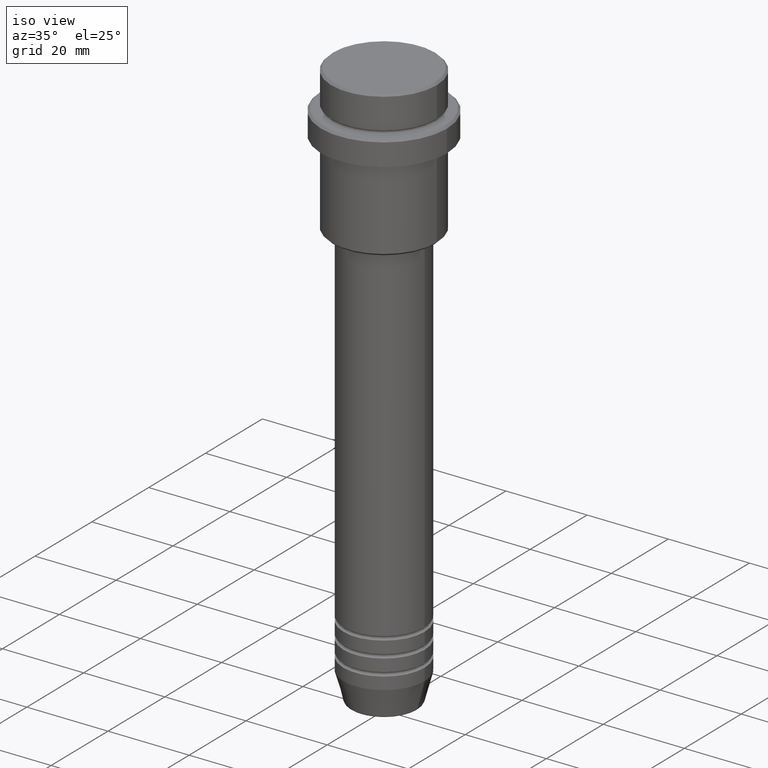
[diagram: clean part render]
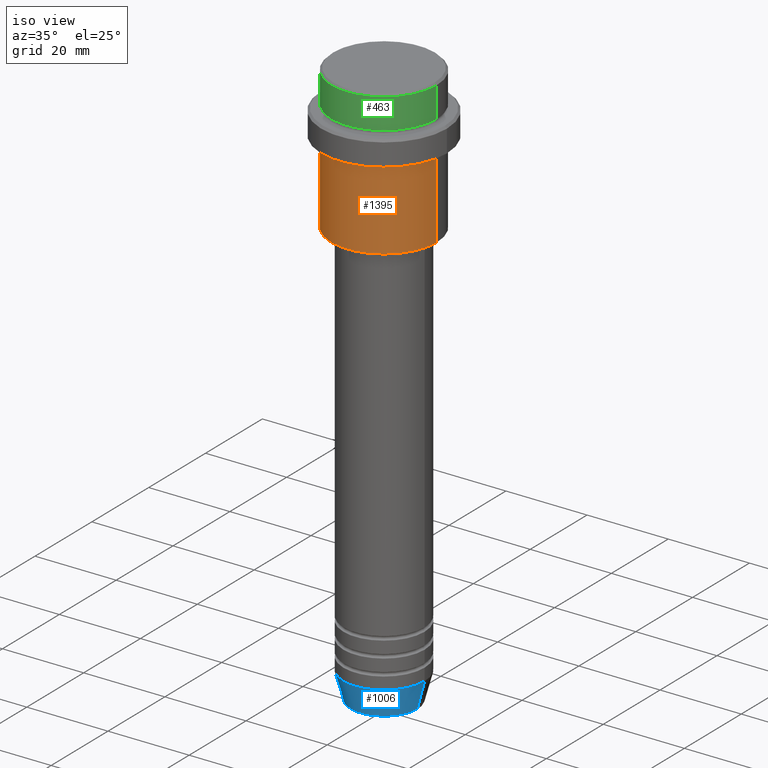
[diagram: same view with three faces highlighted in distinct colors, each labeled with its STEP entity id]
A machine part, iso view with three faces highlighted in distinct colors.
Their STEP definitions:

[orange] entity #1395 — the highlighted cylindrical surface (partial cylindrical patch) has radius 13 mm, axis along (-0, -0, 1).
#2 = DIRECTION ( 'NONE',  ( 1.000000000000000000, 0.000000000000000000, 0.000000000000000000 ) ) ;
#8 = CYLINDRICAL_SURFACE ( 'NONE', #757, 13.00000000000000000 ) ;
#13 = CARTESIAN_POINT ( 'NONE',  ( -13.00000000000000000, 1.592040838891559095E-15, -16.00000000000000000 ) ) ;
#79 = CARTESIAN_POINT ( 'NONE',  ( 13.00000000000000000, 0.000000000000000000, 0.000000000000000000 ) ) ;
#102 = DIRECTION ( 'NONE',  ( -0.000000000000000000, -0.000000000000000000, 1.000000000000000000 ) ) ;
#107 = CARTESIAN_POINT ( 'NONE',  ( 0.000000000000000000, 0.000000000000000000, -16.00000000000000000 ) ) ;
#108 = ORIENTED_EDGE ( 'NONE', *, *, #1301, .F. ) ;
#126 = VERTEX_POINT ( 'NONE', #878 ) ;
#215 = EDGE_CURVE ( 'NONE', #329, #126, #641, .T. ) ;
#242 = EDGE_CURVE ( 'NONE', #1245, #615, #980, .T. ) ;
#301 = DIRECTION ( 'NONE',  ( -0.000000000000000000, -0.000000000000000000, 1.000000000000000000 ) ) ;
#316 = AXIS2_PLACEMENT_3D ( 'NONE', #998, #1008, #1225 ) ;
#329 = VERTEX_POINT ( 'NONE', #13 ) ;
#335 = FACE_OUTER_BOUND ( 'NONE', #1028, .T. ) ;
#440 = AXIS2_PLACEMENT_3D ( 'NONE', #107, #985, #2 ) ;
#492 = VECTOR ( 'NONE', #1266, 1000.000000000000000 ) ;
#532 = ORIENTED_EDGE ( 'NONE', *, *, #215, .F. ) ;
#615 = VERTEX_POINT ( 'NONE', #1405 ) ;
#641 = CIRCLE ( 'NONE', #440, 13.00000000000000000 ) ;
#733 = ORIENTED_EDGE ( 'NONE', *, *, #242, .T. ) ;
#757 = AXIS2_PLACEMENT_3D ( 'NONE', #879, #102, #1198 ) ;
#878 = CARTESIAN_POINT ( 'NONE',  ( 13.00000000000000000, 0.000000000000000000, -16.00000000000000000 ) ) ;
#879 = CARTESIAN_POINT ( 'NONE',  ( 0.000000000000000000, 0.000000000000000000, 0.000000000000000000 ) ) ;
#888 = ORIENTED_EDGE ( 'NONE', *, *, #892, .T. ) ;
#892 = EDGE_CURVE ( 'NONE', #615, #126, #1038, .T. ) ;
#932 = LINE ( 'NONE', #1160, #1371 ) ;
#945 = CARTESIAN_POINT ( 'NONE',  ( -13.00000000000000000, 1.592040838891559095E-15, -35.49999999999997868 ) ) ;
#980 = CIRCLE ( 'NONE', #316, 13.00000000000000000 ) ;
#985 = DIRECTION ( 'NONE',  ( -0.000000000000000000, -0.000000000000000000, 1.000000000000000000 ) ) ;
#998 = CARTESIAN_POINT ( 'NONE',  ( 0.000000000000000000, 0.000000000000000000, -35.49999999999997868 ) ) ;
#1008 = DIRECTION ( 'NONE',  ( -0.000000000000000000, -0.000000000000000000, 1.000000000000000000 ) ) ;
#1028 = EDGE_LOOP ( 'NONE', ( #108, #733, #888, #532 ) ) ;
#1038 = LINE ( 'NONE', #79, #492 ) ;
#1160 = CARTESIAN_POINT ( 'NONE',  ( -13.00000000000000000, 1.592040838891559095E-15, 0.000000000000000000 ) ) ;
#1198 = DIRECTION ( 'NONE',  ( 1.000000000000000000, 0.000000000000000000, 0.000000000000000000 ) ) ;
#1225 = DIRECTION ( 'NONE',  ( -1.000000000000000000, 0.000000000000000000, 0.000000000000000000 ) ) ;
#1245 = VERTEX_POINT ( 'NONE', #945 ) ;
#1266 = DIRECTION ( 'NONE',  ( -0.000000000000000000, -0.000000000000000000, 1.000000000000000000 ) ) ;
#1301 = EDGE_CURVE ( 'NONE', #1245, #329, #932, .T. ) ;
#1371 = VECTOR ( 'NONE', #301, 1000.000000000000000 ) ;
#1395 = ADVANCED_FACE ( 'NONE', ( #335 ), #8, .T. ) ;
#1405 = CARTESIAN_POINT ( 'NONE',  ( 13.00000000000000000, 0.000000000000000000, -35.49999999999997868 ) ) ;

[blue] entity #1006 — the highlighted conical surface has half-angle 15 deg.
#22 = EDGE_CURVE ( 'NONE', #500, #198, #796, .T. ) ;
#87 = CIRCLE ( 'NONE', #1364, 8.223655072137189492 ) ;
#105 = FACE_OUTER_BOUND ( 'NONE', #574, .T. ) ;
#135 = VERTEX_POINT ( 'NONE', #305 ) ;
#149 = ORIENTED_EDGE ( 'NONE', *, *, #972, .T. ) ;
#173 = DIRECTION ( 'NONE',  ( -0.000000000000000000, -0.000000000000000000, 1.000000000000000000 ) ) ;
#198 = VERTEX_POINT ( 'NONE', #327 ) ;
#231 = DIRECTION ( 'NONE',  ( -0.000000000000000000, -0.000000000000000000, 1.000000000000000000 ) ) ;
#305 = CARTESIAN_POINT ( 'NONE',  ( 8.223655072137189492, 0.000000000000000000, -140.6294095225512422 ) ) ;
#322 = DIRECTION ( 'NONE',  ( 0.2588190451025214611, 0.000000000000000000, 0.9659258262890679791 ) ) ;
#327 = CARTESIAN_POINT ( 'NONE',  ( 10.00000000000000000, 0.000000000000000000, -133.9999999999999716 ) ) ;
#349 = CONICAL_SURFACE ( 'NONE', #1417, 10.00000000000000000, 0.2617993877991502405 ) ;
#359 = ORIENTED_EDGE ( 'NONE', *, *, #22, .F. ) ;
#401 = EDGE_CURVE ( 'NONE', #436, #500, #634, .T. ) ;
#436 = VERTEX_POINT ( 'NONE', #820 ) ;
#457 = EDGE_CURVE ( 'NONE', #436, #135, #87, .T. ) ;
#466 = AXIS2_PLACEMENT_3D ( 'NONE', #1377, #173, #925 ) ;
#500 = VERTEX_POINT ( 'NONE', #854 ) ;
#521 = CARTESIAN_POINT ( 'NONE',  ( 0.000000000000000000, 0.000000000000000000, -140.6294095225512422 ) ) ;
#534 = DIRECTION ( 'NONE',  ( -0.2588190451025214611, 3.169619151431774186E-17, 0.9659258262890679791 ) ) ;
#574 = EDGE_LOOP ( 'NONE', ( #1300, #880, #149, #359 ) ) ;
#634 = LINE ( 'NONE', #1164, #1210 ) ;
#656 = LINE ( 'NONE', #1067, #828 ) ;
#796 = CIRCLE ( 'NONE', #466, 10.00000000000000000 ) ;
#820 = CARTESIAN_POINT ( 'NONE',  ( -8.223655072137189492, 1.115877042642911856E-15, -140.6294095225512422 ) ) ;
#828 = VECTOR ( 'NONE', #322, 1000.000000000000114 ) ;
#854 = CARTESIAN_POINT ( 'NONE',  ( -10.00000000000000000, 1.224646799147353256E-15, -133.9999999999999716 ) ) ;
#864 = DIRECTION ( 'NONE',  ( 1.000000000000000000, 0.000000000000000000, 0.000000000000000000 ) ) ;
#880 = ORIENTED_EDGE ( 'NONE', *, *, #457, .T. ) ;
#925 = DIRECTION ( 'NONE',  ( 1.000000000000000000, 0.000000000000000000, 0.000000000000000000 ) ) ;
#952 = DIRECTION ( 'NONE',  ( -0.000000000000000000, -0.000000000000000000, 1.000000000000000000 ) ) ;
#972 = EDGE_CURVE ( 'NONE', #135, #198, #656, .T. ) ;
#1006 = ADVANCED_FACE ( 'NONE', ( #105 ), #349, .T. ) ;
#1067 = CARTESIAN_POINT ( 'NONE',  ( 10.00000000000000000, 0.000000000000000000, -133.9999999999999716 ) ) ;
#1164 = CARTESIAN_POINT ( 'NONE',  ( -10.00000000000000000, 1.224646799147353256E-15, -133.9999999999999716 ) ) ;
#1210 = VECTOR ( 'NONE', #534, 1000.000000000000114 ) ;
#1254 = DIRECTION ( 'NONE',  ( 1.000000000000000000, 0.000000000000000000, 0.000000000000000000 ) ) ;
#1300 = ORIENTED_EDGE ( 'NONE', *, *, #401, .F. ) ;
#1320 = CARTESIAN_POINT ( 'NONE',  ( 0.000000000000000000, 0.000000000000000000, -133.9999999999999716 ) ) ;
#1364 = AXIS2_PLACEMENT_3D ( 'NONE', #521, #952, #1254 ) ;
#1377 = CARTESIAN_POINT ( 'NONE',  ( 0.000000000000000000, 0.000000000000000000, -133.9999999999999716 ) ) ;
#1417 = AXIS2_PLACEMENT_3D ( 'NONE', #1320, #231, #864 ) ;

[green] entity #463 — the highlighted cylindrical surface (partial cylindrical patch) has radius 13 mm, axis along (-0, -0, 1).
#16 = VECTOR ( 'NONE', #421, 1000.000000000000000 ) ;
#23 = VERTEX_POINT ( 'NONE', #611 ) ;
#104 = EDGE_LOOP ( 'NONE', ( #637, #240, #268, #761 ) ) ;
#113 = AXIS2_PLACEMENT_3D ( 'NONE', #295, #163, #1141 ) ;
#137 = CARTESIAN_POINT ( 'NONE',  ( 12.99999999999999822, 0.000000000000000000, -7.999999999999998224 ) ) ;
#154 = CYLINDRICAL_SURFACE ( 'NONE', #113, 12.99999999999999822 ) ;
#157 = LINE ( 'NONE', #1125, #1277 ) ;
#163 = DIRECTION ( 'NONE',  ( -0.000000000000000000, -0.000000000000000000, 1.000000000000000000 ) ) ;
#227 = EDGE_CURVE ( 'NONE', #736, #1228, #522, .T. ) ;
#240 = ORIENTED_EDGE ( 'NONE', *, *, #849, .T. ) ;
#268 = ORIENTED_EDGE ( 'NONE', *, *, #227, .T. ) ;
#295 = CARTESIAN_POINT ( 'NONE',  ( 0.000000000000000000, 0.000000000000000000, 0.000000000000000000 ) ) ;
#304 = FACE_OUTER_BOUND ( 'NONE', #104, .T. ) ;
#367 = CARTESIAN_POINT ( 'NONE',  ( 12.99999999999999822, 0.000000000000000000, -0.4999999999999900080 ) ) ;
#421 = DIRECTION ( 'NONE',  ( -0.000000000000000000, -0.000000000000000000, 1.000000000000000000 ) ) ;
#424 = DIRECTION ( 'NONE',  ( 1.000000000000000000, 0.000000000000000000, 0.000000000000000000 ) ) ;
#463 = ADVANCED_FACE ( 'NONE', ( #304 ), #154, .T. ) ;
#471 = AXIS2_PLACEMENT_3D ( 'NONE', #1307, #979, #974 ) ;
#522 = LINE ( 'NONE', #1385, #16 ) ;
#599 = CIRCLE ( 'NONE', #1414, 12.99999999999999822 ) ;
#611 = CARTESIAN_POINT ( 'NONE',  ( -12.99999999999999822, 1.592040838891558898E-15, -7.999999999999998224 ) ) ;
#637 = ORIENTED_EDGE ( 'NONE', *, *, #1104, .F. ) ;
#701 = DIRECTION ( 'NONE',  ( -0.000000000000000000, -0.000000000000000000, 1.000000000000000000 ) ) ;
#736 = VERTEX_POINT ( 'NONE', #137 ) ;
#761 = ORIENTED_EDGE ( 'NONE', *, *, #948, .T. ) ;
#849 = EDGE_CURVE ( 'NONE', #23, #736, #599, .T. ) ;
#947 = DIRECTION ( 'NONE',  ( -0.000000000000000000, -0.000000000000000000, 1.000000000000000000 ) ) ;
#948 = EDGE_CURVE ( 'NONE', #1228, #1124, #1071, .T. ) ;
#974 = DIRECTION ( 'NONE',  ( 1.000000000000000000, 0.000000000000000000, 0.000000000000000000 ) ) ;
#979 = DIRECTION ( 'NONE',  ( 0.000000000000000000, 0.000000000000000000, -1.000000000000000000 ) ) ;
#1071 = CIRCLE ( 'NONE', #471, 12.99999999999999822 ) ;
#1104 = EDGE_CURVE ( 'NONE', #23, #1124, #157, .T. ) ;
#1124 = VERTEX_POINT ( 'NONE', #1330 ) ;
#1125 = CARTESIAN_POINT ( 'NONE',  ( -12.99999999999999822, 1.592040838891558898E-15, 0.000000000000000000 ) ) ;
#1141 = DIRECTION ( 'NONE',  ( 1.000000000000000000, 0.000000000000000000, 0.000000000000000000 ) ) ;
#1155 = CARTESIAN_POINT ( 'NONE',  ( 0.000000000000000000, 0.000000000000000000, -7.999999999999998224 ) ) ;
#1228 = VERTEX_POINT ( 'NONE', #367 ) ;
#1277 = VECTOR ( 'NONE', #701, 1000.000000000000000 ) ;
#1307 = CARTESIAN_POINT ( 'NONE',  ( 0.000000000000000000, 0.000000000000000000, -0.4999999999999900080 ) ) ;
#1330 = CARTESIAN_POINT ( 'NONE',  ( -12.99999999999999822, 1.592040838891558898E-15, -0.4999999999999900080 ) ) ;
#1385 = CARTESIAN_POINT ( 'NONE',  ( 12.99999999999999822, 0.000000000000000000, 0.000000000000000000 ) ) ;
#1414 = AXIS2_PLACEMENT_3D ( 'NONE', #1155, #947, #424 ) ;